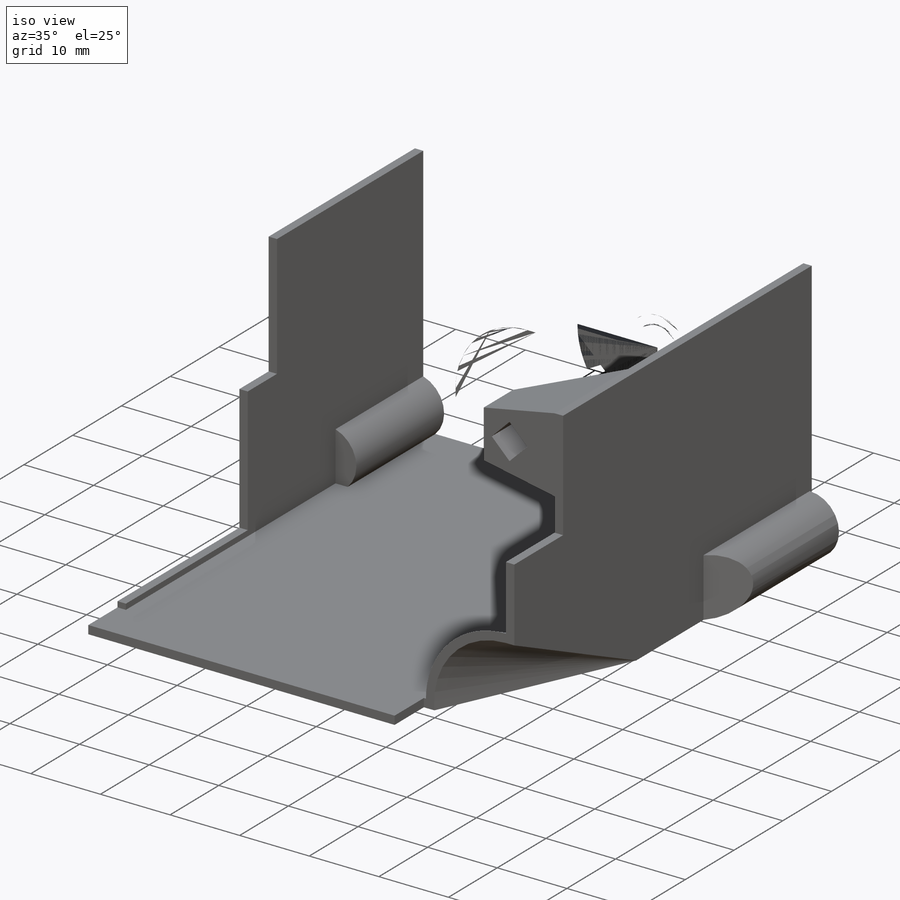
[diagram: iso view]
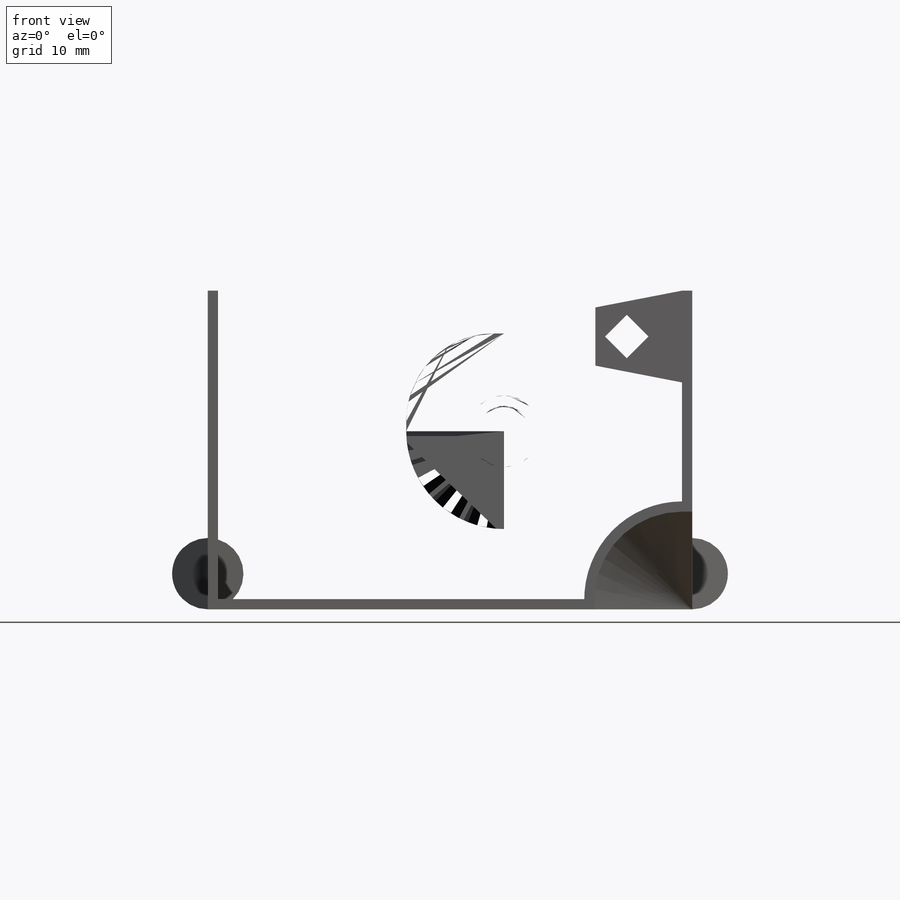
[diagram: front view]
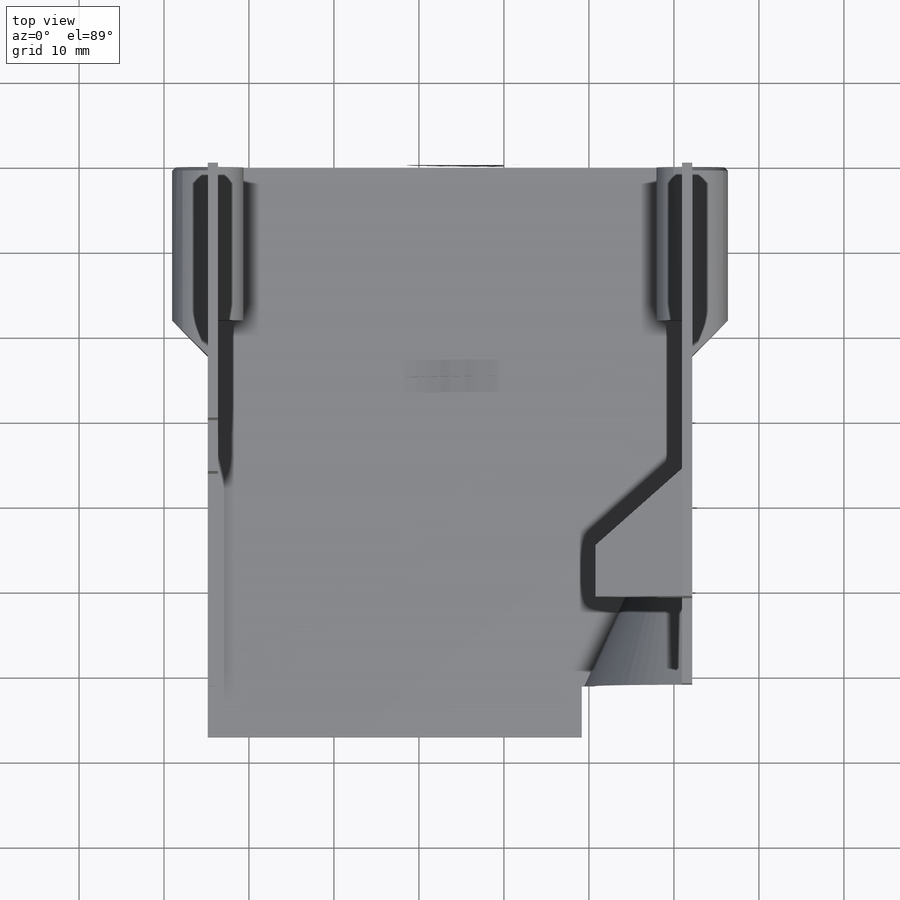
[diagram: top view]
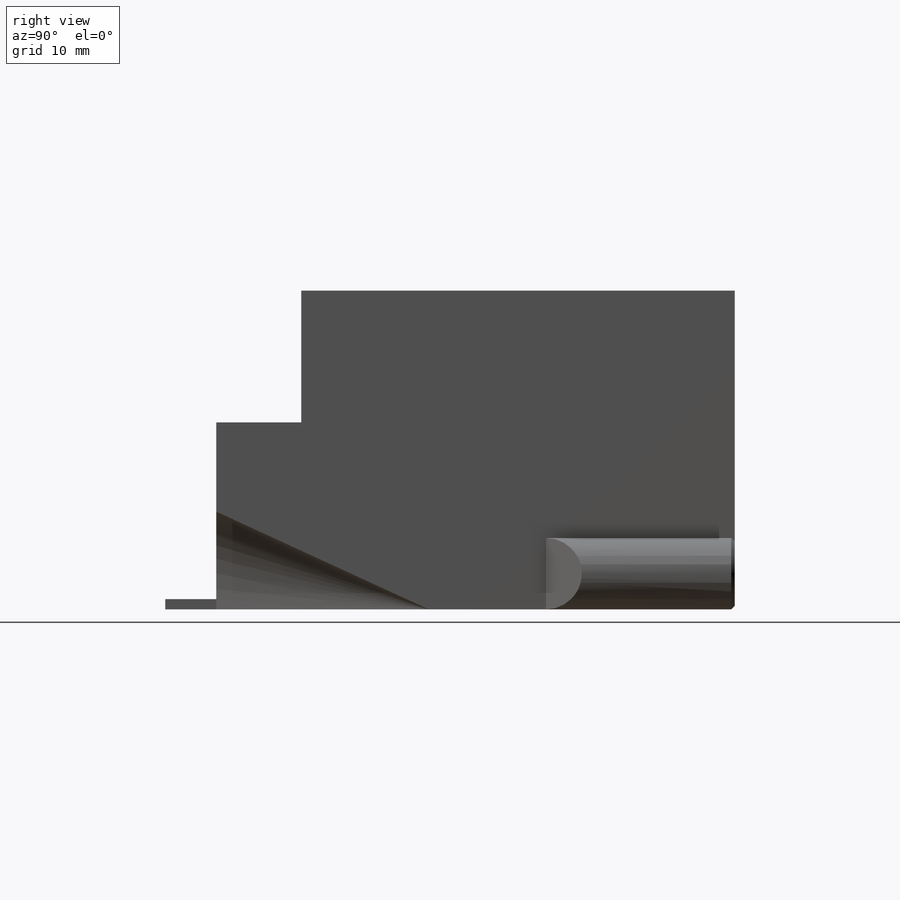
[diagram: right view]
SOLIDWORKS PART (.sldprt)
format: sldprt  version: not decoded by parser v0  size: 474,624 bytes
history: native  units: mm
features: sketch x14, cut_extrude x8, chamfer x3, extrude x2, material x1 (+13 scaffold rows collapsed)
feature tree (41):
  scaffold x13  (default folders/planes/origin — collapsed)
  material  "Custom Plastic"
  sketch  "Sketch1"  dims[c1.D2=3.2mm c1.D5=4.2mm c1.D1=1.2mm c2.D2=2.4mm c2.D3=47.0mm c2.D4=28.0mm c3.D3=57.0mm c3.D4=37.5mm c3.D6=59.0mm]
  extrude  "Boss-Extrude1"  Depth=67mm
  sketch  "Sketch2"  dims[D1=13.0mm]
  cut_extrude  "Cut-Extrude1"  Depth=6mm
  sketch  "Sketch3"  dims[D1=15.5mm]
  cut_extrude  "Cut-Extrude2"  Depth=10mm
  sketch  "Sketch4"
  cut_extrude  "Cut-Extrude3"  Depth=21mm
  sketch  "Sketch6"  dims[D1=3.0mm]
  cut_extrude  "Cut-Extrude4"  Depth=16mm
  sketch  "Sketch7"
  cut_extrude  "Cut-Extrude5"  Depth=18mm
  chamfer  "Chamfer1"  Distance=4.2mm Angle=45deg
  chamfer  "Chamfer3"  Distance=0.6mm Angle=30deg
  chamfer  "Chamfer4"  Distance=0.4mm Angle=45deg
  sketch  "Sketch8"  dims[c1.D1=1.6mm c1.D5=5.1mm c1.D2=6.5mm c1.D3=7.85mm c1.D4=10.2mm c2.D3=5.4mm c2.D6=6.85mm]
  extrude  "Boss-Extrude2"  Depth=15mm
  sketch  "Sketch10"  dims[D1=3.0mm]
  cut_extrude  "Cut-Extrude6"  Depth=6mm
  sketch  "Sketch11"
  cut_extrude  "Cut-Extrude7"  Depth=10mm
  sketch  "Sketch12"  dims[D1=6.0mm]
  cut_extrude  "Cut-Extrude8"  Depth=0.8mm
  sketch  "Sketch13"  dims[D1=11.5mm]
  sketch  "Sketch14"  dims[D1=25.0mm]
  sketch  "Sketch15"
  sketch  "Sketch16"
decode coverage: 22 of 27 modeling features carry decoded parameters
note: suppression state not decoded; provenance and decode notes live in map.json
